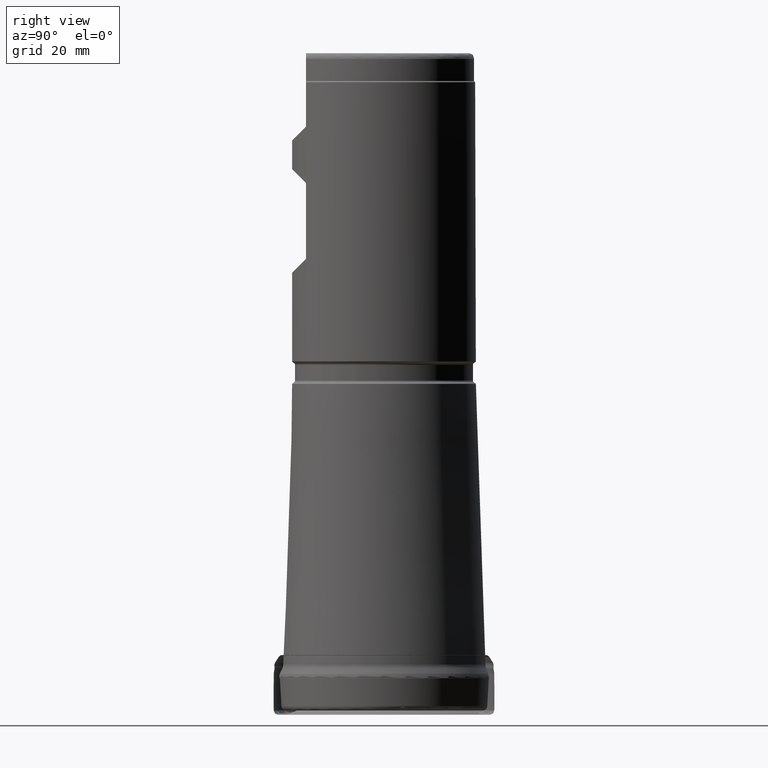
[diagram: clean part render]
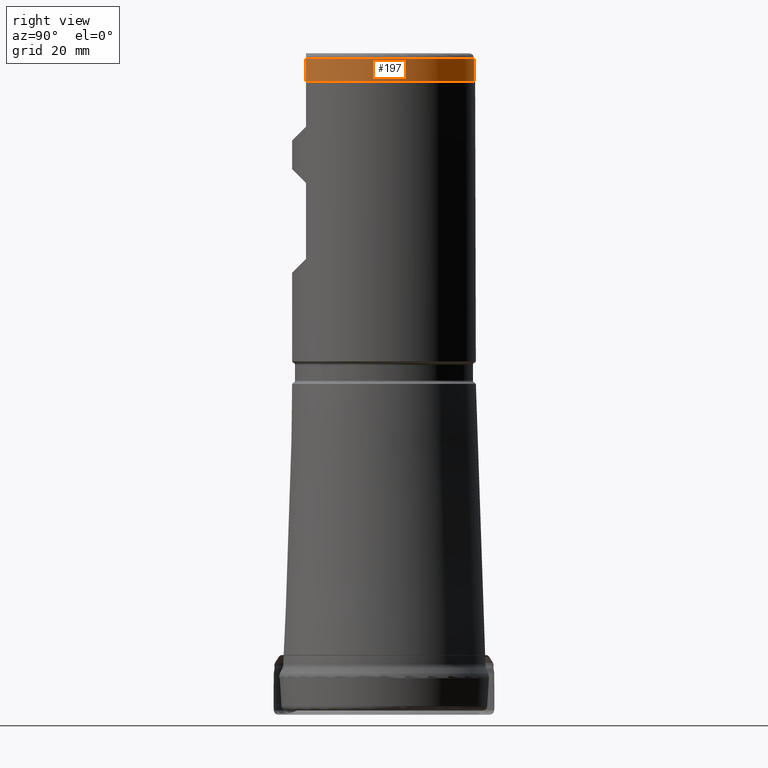
[diagram: same view with one face highlighted and labeled with its STEP entity id]
A machine part, right view. The second image highlights one B-rep face of the part: STEP entity #197.
In plain terms, the highlighted cylindrical surface (partial cylindrical patch) has radius 15.675 mm, axis along (0, 0, 1).
Its self-contained STEP definition (entity closure, byte-faithful):
#185=FACE_OUTER_BOUND('',#389,.T.);
#197=ADVANCED_FACE('',(#185),#255,.T.);
#255=CYLINDRICAL_SURFACE('',#897,15.675);
#266=LINE('',#1523,#279);
#267=LINE('',#1527,#280);
#279=VECTOR('',#996,1.);
#280=VECTOR('',#999,1.);
#389=EDGE_LOOP('',(#505,#506,#507,#508));
#505=ORIENTED_EDGE('',*,*,#722,.T.);
#506=ORIENTED_EDGE('',*,*,#723,.T.);
#507=ORIENTED_EDGE('',*,*,#724,.T.);
#508=ORIENTED_EDGE('',*,*,#725,.T.);
#655=VERTEX_POINT('',#1521);
#656=VERTEX_POINT('',#1522);
#657=VERTEX_POINT('',#1524);
#658=VERTEX_POINT('',#1526);
#722=EDGE_CURVE('',#655,#656,#784,.T.);
#723=EDGE_CURVE('',#656,#657,#266,.T.);
#724=EDGE_CURVE('',#657,#658,#785,.T.);
#725=EDGE_CURVE('',#658,#655,#267,.T.);
#784=CIRCLE('',#895,15.675);
#785=CIRCLE('',#896,15.675);
#895=AXIS2_PLACEMENT_3D('',#1520,#994,#995);
#896=AXIS2_PLACEMENT_3D('',#1525,#997,#998);
#897=AXIS2_PLACEMENT_3D('',#1528,#1000,#1001);
#994=DIRECTION('',(0.,-1.17145536458252E-15,-1.));
#995=DIRECTION('',(0.,-1.,8.85345314693108E-16));
#996=DIRECTION('',(0.,-1.17145536458252E-15,-1.));
#997=DIRECTION('',(0.,1.17145536458252E-15,1.));
#998=DIRECTION('',(0.,-1.,8.85345314693108E-16));
#999=DIRECTION('',(0.,1.17145536458252E-15,1.));
#1000=DIRECTION('',(0.,1.17145536458252E-15,1.));
#1001=DIRECTION('',(0.,-1.,1.17145536458252E-15));
#1520=CARTESIAN_POINT('',(0.,1.327258928072E-13,113.3));
#1521=CARTESIAN_POINT('',(-7.98721893028869,-13.4873999999999,113.299999999989));
#1522=CARTESIAN_POINT('',(7.98721893026602,-13.4873999999999,113.3));
#1523=CARTESIAN_POINT('',(7.98721893026602,-13.4874,1.57998870842703E-14));
#1524=CARTESIAN_POINT('',(7.98721893026602,-13.4873999999999,109.5));
#1525=CARTESIAN_POINT('',(0.,1.28274362421786E-13,109.5));
#1526=CARTESIAN_POINT('',(-7.98721893026602,-13.4873999999999,109.5));
#1527=CARTESIAN_POINT('',(-7.98721893026602,-13.4874,1.57998870842703E-14));
#1528=CARTESIAN_POINT('',(0.,0.,0.));